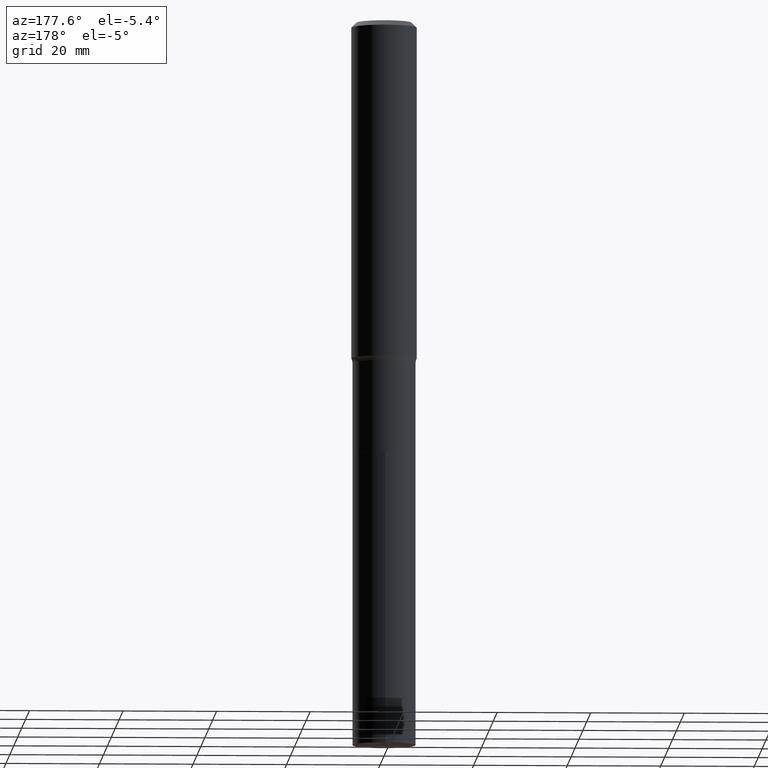
[diagram: clean part render]
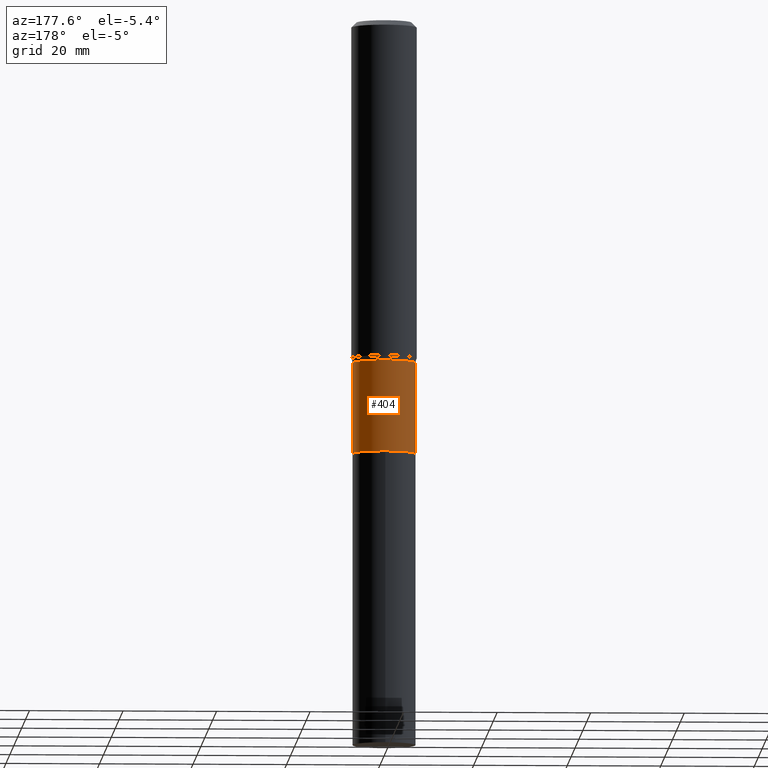
[diagram: same view with one face highlighted and labeled with its STEP entity id]
A machine part, auxiliary view. The second image highlights one B-rep face of the part: STEP entity #404.
In plain terms, the highlighted cylindrical surface (edge-blend (fillet) strip) has radius 6.7462 mm, axis along (-0, 0, 1).
Its self-contained STEP definition (entity closure, byte-faithful):
#8 = CARTESIAN_POINT ( 'NONE',  ( 0.2655999999999999472, -1.854674887193472050E-15, 1.295112551651400461E-29 ) ) ;
#16 = DIRECTION ( 'NONE',  ( -2.445468806185136597E-29, 3.491481338843145583E-15, 1.000000000000000000 ) ) ;
#62 = ORIENTED_EDGE ( 'NONE', *, *, #378, .F. ) ;
#79 = CARTESIAN_POINT ( 'NONE',  ( -0.2656000000000000028, -9.485600658834952659E-15, -3.640899999999999803 ) ) ;
#88 = AXIS2_PLACEMENT_3D ( 'NONE', #299, #16, #306 ) ;
#92 = CARTESIAN_POINT ( 'NONE',  ( 0.2656000000000000028, -1.456680929378748200E-14, -3.640899999999999803 ) ) ;
#103 = ORIENTED_EDGE ( 'NONE', *, *, #268, .F. ) ;
#111 = EDGE_LOOP ( 'NONE', ( #300, #355, #103, #62 ) ) ;
#116 = FACE_OUTER_BOUND ( 'NONE', #111, .T. ) ;
#169 = VECTOR ( 'NONE', #374, 39.37007874015748143 ) ;
#181 = VERTEX_POINT ( 'NONE', #92 ) ;
#202 = CARTESIAN_POINT ( 'NONE',  ( 0.2655999999999998917, -1.188814481062701964E-14, -2.873699999999999921 ) ) ;
#214 = VERTEX_POINT ( 'NONE', #202 ) ;
#222 = CIRCLE ( 'NONE', #318, 0.2655999999999998917 ) ;
#225 = DIRECTION ( 'NONE',  ( 1.000000000000000000, -6.982962677686266711E-15, 4.876176775795936353E-29 ) ) ;
#230 = CARTESIAN_POINT ( 'NONE',  ( -0.2655999999999999472, 1.887201506178825719E-15, -1.306469159971702786E-29 ) ) ;
#264 = CYLINDRICAL_SURFACE ( 'NONE', #284, 0.2655999999999999472 ) ;
#268 = EDGE_CURVE ( 'NONE', #214, #297, #222, .T. ) ;
#271 = LINE ( 'NONE', #230, #169 ) ;
#275 = CARTESIAN_POINT ( 'NONE',  ( -0.2655999999999998917, -9.485600658834952659E-15, -2.873699999999999921 ) ) ;
#284 = AXIS2_PLACEMENT_3D ( 'NONE', #336, #304, #225 ) ;
#297 = VERTEX_POINT ( 'NONE', #275 ) ;
#299 = CARTESIAN_POINT ( 'NONE',  ( 8.903707376439464300E-29, -1.271213440659400877E-14, -3.640899999999999803 ) ) ;
#300 = ORIENTED_EDGE ( 'NONE', *, *, #391, .T. ) ;
#304 = DIRECTION ( 'NONE',  ( -2.445468806185136597E-29, 3.491481338843145583E-15, 1.000000000000000000 ) ) ;
#306 = DIRECTION ( 'NONE',  ( 1.000000000000000000, -6.982962677686263555E-15, 0.000000000000000000 ) ) ;
#318 = AXIS2_PLACEMENT_3D ( 'NONE', #381, #338, #383 ) ;
#336 = CARTESIAN_POINT ( 'NONE',  ( 0.000000000000000000, 0.000000000000000000, 0.000000000000000000 ) ) ;
#338 = DIRECTION ( 'NONE',  ( -2.445468806185136597E-29, 3.491481338843145583E-15, 1.000000000000000000 ) ) ;
#355 = ORIENTED_EDGE ( 'NONE', *, *, #415, .T. ) ;
#358 = VECTOR ( 'NONE', #444, 39.37007874015748143 ) ;
#374 = DIRECTION ( 'NONE',  ( -2.445468806185136877E-29, 3.491481338843145188E-15, 1.000000000000000000 ) ) ;
#378 = EDGE_CURVE ( 'NONE', #181, #214, #447, .T. ) ;
#381 = CARTESIAN_POINT ( 'NONE',  ( 7.027543708334228001E-29, -1.003346992343354799E-14, -2.873699999999999921 ) ) ;
#382 = CIRCLE ( 'NONE', #88, 0.2656000000000000028 ) ;
#383 = DIRECTION ( 'NONE',  ( 1.000000000000000000, -6.982962677686266711E-15, 0.000000000000000000 ) ) ;
#391 = EDGE_CURVE ( 'NONE', #181, #396, #382, .T. ) ;
#396 = VERTEX_POINT ( 'NONE', #79 ) ;
#404 = ADVANCED_FACE ( 'NONE', ( #116 ), #264, .T. ) ;
#415 = EDGE_CURVE ( 'NONE', #396, #297, #271, .T. ) ;
#444 = DIRECTION ( 'NONE',  ( -2.445468806185136877E-29, 3.491481338843145188E-15, 1.000000000000000000 ) ) ;
#447 = LINE ( 'NONE', #8, #358 ) ;